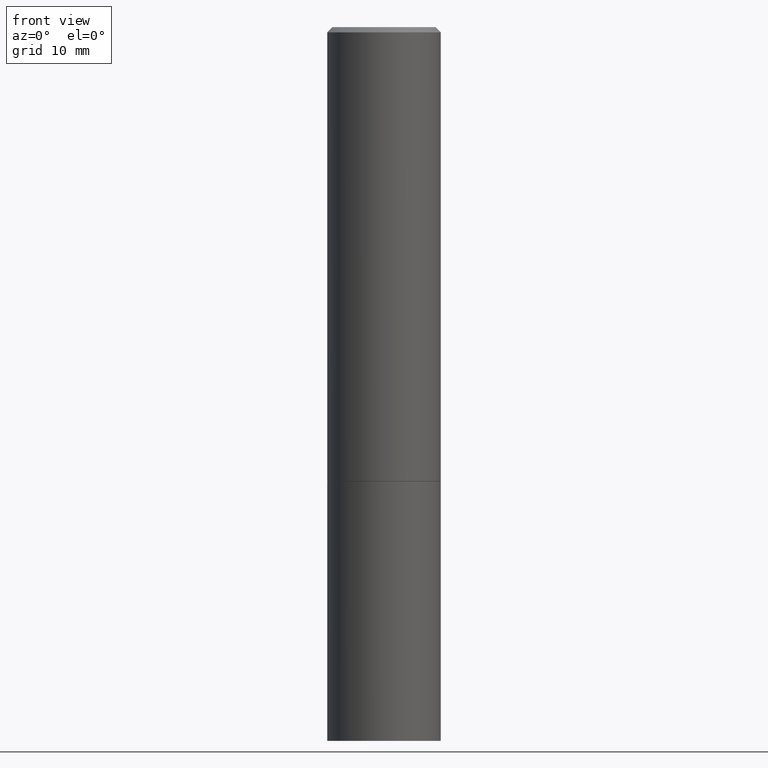
[diagram: clean part render]
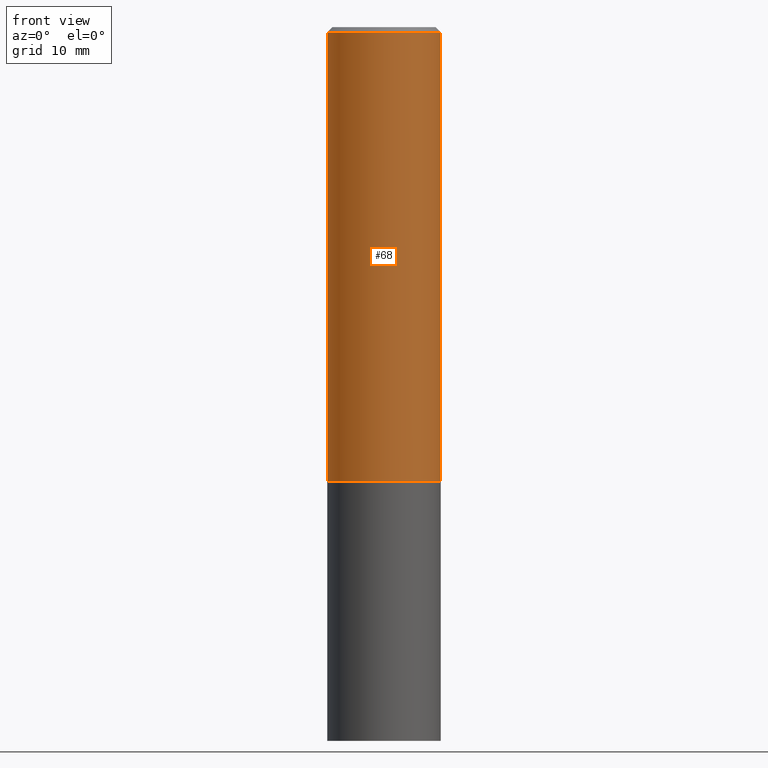
[diagram: same view with one face highlighted and labeled with its STEP entity id]
A machine part, front view. The second image highlights one B-rep face of the part: STEP entity #68.
In plain terms, the highlighted cylindrical surface (partial cylindrical patch) has radius 5.5562 mm, axis along (-0, 0, 1).
Its self-contained STEP definition (entity closure, byte-faithful):
#36 = DIRECTION ( 'NONE',  ( 1.000000000000000000, -6.982962677686266711E-15, 4.876176775795935793E-29 ) ) ;
#39 = CYLINDRICAL_SURFACE ( 'NONE', #86, 0.2187499999999998890 ) ;
#56 = VERTEX_POINT ( 'NONE', #325 ) ;
#67 = CARTESIAN_POINT ( 'NONE',  ( 0.000000000000000000, 0.000000000000000000, 0.000000000000000000 ) ) ;
#68 = ADVANCED_FACE ( 'NONE', ( #175 ), #39, .T. ) ;
#86 = AXIS2_PLACEMENT_3D ( 'NONE', #67, #234, #36 ) ;
#87 = ORIENTED_EDGE ( 'NONE', *, *, #292, .T. ) ;
#90 = CARTESIAN_POINT ( 'NONE',  ( -0.2187500000000000000, -1.533903009731541155E-15, -1.748999999999999888 ) ) ;
#105 = DIRECTION ( 'NONE',  ( -2.445468806185136597E-29, 3.491481338843145583E-15, 1.000000000000000000 ) ) ;
#126 = CARTESIAN_POINT ( 'NONE',  ( -0.2187499999999998890, 1.554312234475218368E-15, -1.076017050993260062E-29 ) ) ;
#128 = EDGE_CURVE ( 'NONE', #143, #364, #129, .T. ) ;
#129 = LINE ( 'NONE', #126, #215 ) ;
#138 = CARTESIAN_POINT ( 'NONE',  ( 0.2187500000000000000, -7.634123947380530929E-15, -1.748999999999999888 ) ) ;
#140 = CARTESIAN_POINT ( 'NONE',  ( 4.890937612370284544E-31, -6.982962677686307633E-17, -0.02000000000000004552 ) ) ;
#141 = ORIENTED_EDGE ( 'NONE', *, *, #343, .F. ) ;
#143 = VERTEX_POINT ( 'NONE', #90 ) ;
#175 = FACE_OUTER_BOUND ( 'NONE', #335, .T. ) ;
#183 = DIRECTION ( 'NONE',  ( -2.445468806185136877E-29, 3.491481338843145188E-15, 1.000000000000000000 ) ) ;
#196 = CARTESIAN_POINT ( 'NONE',  ( 4.277124942017804002E-29, -6.106600861636660875E-15, -1.748999999999999888 ) ) ;
#201 = AXIS2_PLACEMENT_3D ( 'NONE', #196, #105, #282 ) ;
#202 = LINE ( 'NONE', #287, #347 ) ;
#215 = VECTOR ( 'NONE', #183, 39.37007874015748143 ) ;
#221 = DIRECTION ( 'NONE',  ( -2.445468806185136877E-29, 3.491481338843145188E-15, 1.000000000000000000 ) ) ;
#226 = DIRECTION ( 'NONE',  ( 1.000000000000000000, -6.982962677686266711E-15, 0.000000000000000000 ) ) ;
#227 = ORIENTED_EDGE ( 'NONE', *, *, #128, .F. ) ;
#234 = DIRECTION ( 'NONE',  ( -2.445468806185136597E-29, 3.491481338843145583E-15, 1.000000000000000000 ) ) ;
#258 = VERTEX_POINT ( 'NONE', #138 ) ;
#282 = DIRECTION ( 'NONE',  ( 1.000000000000000000, -6.982962677686267499E-15, 0.000000000000000000 ) ) ;
#287 = CARTESIAN_POINT ( 'NONE',  ( 0.2187499999999998890, -1.527523085743870054E-15, 1.066663669705360464E-29 ) ) ;
#292 = EDGE_CURVE ( 'NONE', #258, #56, #202, .T. ) ;
#310 = CARTESIAN_POINT ( 'NONE',  ( -0.2187499999999997502, 1.457693458967005967E-15, -0.02000000000000004552 ) ) ;
#320 = EDGE_CURVE ( 'NONE', #143, #258, #354, .T. ) ;
#323 = CIRCLE ( 'NONE', #361, 0.2187499999999997502 ) ;
#325 = CARTESIAN_POINT ( 'NONE',  ( 0.2187499999999997502, -1.570563563789383855E-15, -0.02000000000000004552 ) ) ;
#335 = EDGE_LOOP ( 'NONE', ( #227, #359, #87, #141 ) ) ;
#337 = DIRECTION ( 'NONE',  ( -2.445468806185136597E-29, 3.491481338843145583E-15, 1.000000000000000000 ) ) ;
#343 = EDGE_CURVE ( 'NONE', #364, #56, #323, .T. ) ;
#347 = VECTOR ( 'NONE', #221, 39.37007874015748143 ) ;
#354 = CIRCLE ( 'NONE', #201, 0.2187500000000000000 ) ;
#359 = ORIENTED_EDGE ( 'NONE', *, *, #320, .T. ) ;
#361 = AXIS2_PLACEMENT_3D ( 'NONE', #140, #337, #226 ) ;
#364 = VERTEX_POINT ( 'NONE', #310 ) ;